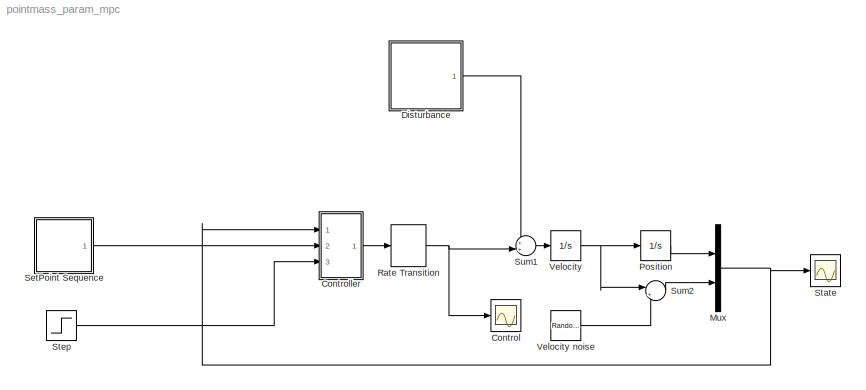
MODEL pointmass_param_mpc
KIND model
BLOCK [Scope] Control
  DataFormat = StructureWithTime
  Floating = off
  NumInputPorts = 1
  Ports = [1]
  SID = 8
  SampleTime = 0
  SaveName = ScopeData1
  ShowLegends = off
  TimeRange = 240
  YMax = 0.35
  YMin = -0.4
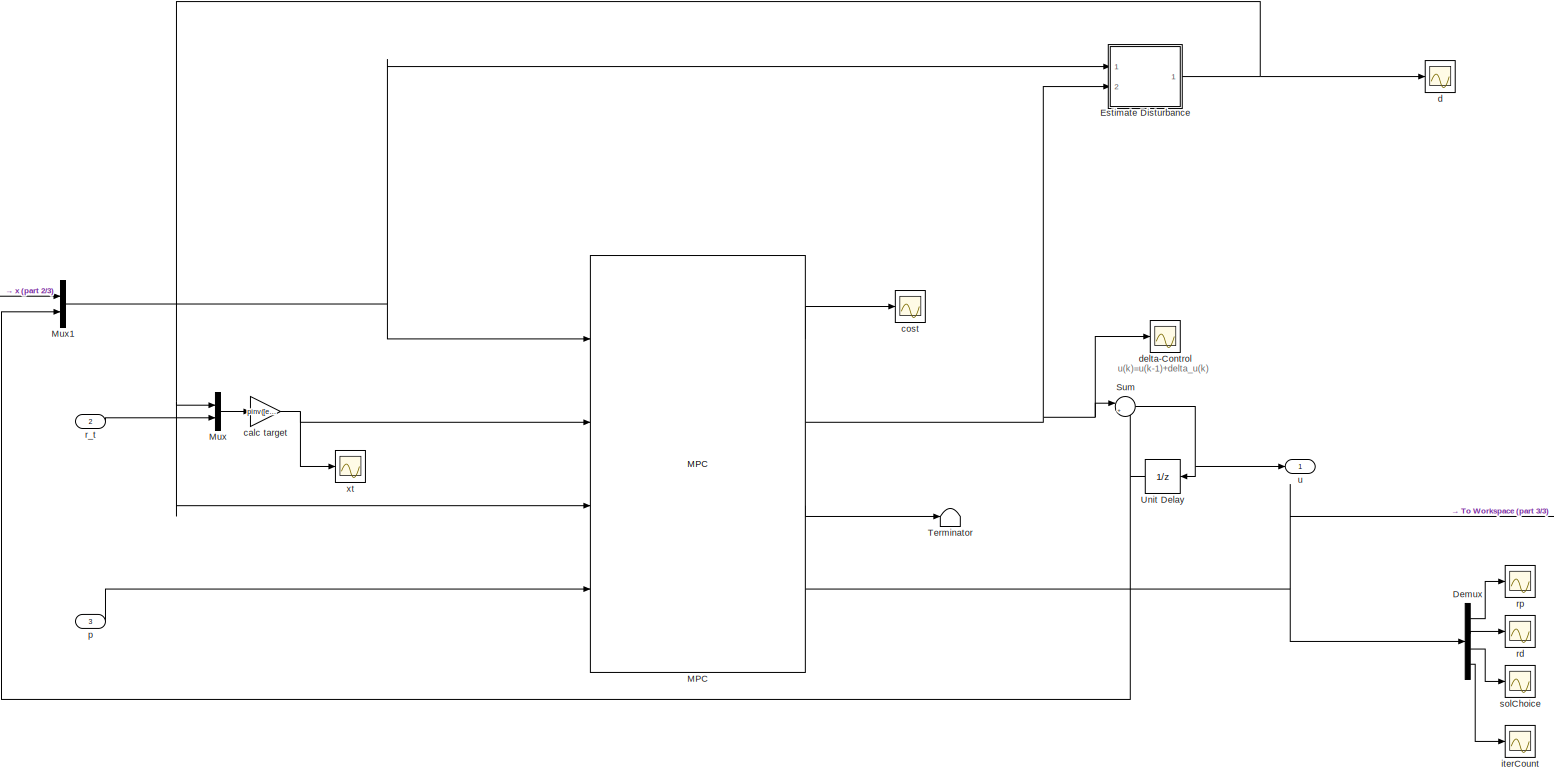
[diagram: Controller - part 1/3, most of the canvas]
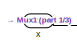
[diagram: Controller - part 2/3, middle left region]
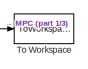
[diagram: Controller - part 3/3, bottom right region]
BLOCK [SubSystem] Controller
  Ports = [3, 1]
  RequestExecContextInheritance = off
  SID = 410
  SystemSampleTime = dt
  TreatAsAtomicUnit = on
BLOCK [Demux] Controller/Demux
  DisplayOption = bar
  Ports = [1, 4]
  SID = 416
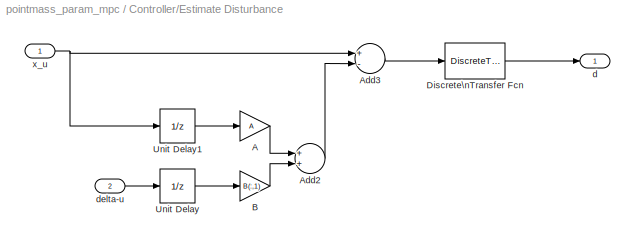
BLOCK [SubSystem] Controller/Estimate Disturbance
  Ports = [2, 1]
  RequestExecContextInheritance = off
  SID = 417
BLOCK [Gain] Controller/Estimate Disturbance/A
  Gain = A
  Multiplication = Matrix(K*u)
  OutDataTypeStr = Inherit: Inherit via internal rule
  ParamDataTypeStr = Inherit: Inherit via internal rule
  SID = 420
  SaturateOnIntegerOverflow = off
BLOCK [Sum] Controller/Estimate Disturbance/Add2
  InputSameDT = off
  OutDataTypeStr = Inherit: Inherit via internal rule
  Ports = [2, 1]
  SID = 421
  SaturateOnIntegerOverflow = off
BLOCK [Sum] Controller/Estimate Disturbance/Add3
  InputSameDT = off
  Inputs = +-
  OutDataTypeStr = Inherit: Inherit via internal rule
  Ports = [2, 1]
  SID = 422
  SaturateOnIntegerOverflow = off
BLOCK [Gain] Controller/Estimate Disturbance/B
  Gain = B(:,1)
  Multiplication = Matrix(K*u)
  OutDataTypeStr = Inherit: Inherit via internal rule
  ParamDataTypeStr = Inherit: Inherit via internal rule
  SID = 423
  SaturateOnIntegerOverflow = off
BLOCK [DiscreteTransferFcn] Controller/Estimate Disturbance/Discrete\nTransfer Fcn
  Denominator = [1 -0.5]
  InputPortMap = u0
  Numerator = [0.5]
  Ports = [1, 1]
  SID = 424
BLOCK [UnitDelay] Controller/Estimate Disturbance/Unit Delay
  InputProcessing = Elements as channels (sample based)
  SID = 425
  SampleTime = -1
BLOCK [UnitDelay] Controller/Estimate Disturbance/Unit Delay1
  InputProcessing = Elements as channels (sample based)
  SID = 426
  SampleTime = -1
BLOCK [Outport] Controller/Estimate Disturbance/d
  IconDisplay = Port number
  SID = 427
BLOCK [Inport] Controller/Estimate Disturbance/delta-u
  IconDisplay = Port number
  Port = 2
  SID = 419
BLOCK [Inport] Controller/Estimate Disturbance/x_u
  IconDisplay = Port number
  SID = 418
BLOCK [Reference] Controller/MPC  REF=softmpc/MPC  (lib defined in slx_924f6ada8cb6)
  A = A
  B = B
  Ed = Ed
  Ef = Ef
  Fp = Fp
  Fpf = Fpf
  Fps = Fps
  Fu = Fu
  Fus = Fus
  Fx = Fx
  Fxf = Fxf
  Fxs = Fxs
  Ports = [4, 4]
  Q = Q
  Qf = Qf
  R = R
  SID = 506
  SourceBlock = softmpc/MPC
  SourceType = MPC
  T = 6
  consAllBox = on
  dt = -1
  e = ef
  f = f
  ff = ff
  fs = fs
  kappa = 0.005
  numNewton = 5
  qfv = qf
  qv = q
  rv = r
BLOCK [Mux] Controller/Mux
  DisplayOption = bar
  Inputs = 2
  Ports = [2, 1]
  SID = 428
BLOCK [Mux] Controller/Mux1
  DisplayOption = bar
  Inputs = 2
  Ports = [2, 1]
  SID = 89
BLOCK [Sum] Controller/Sum
  IconShape = round
  InputSameDT = off
  Inputs = |++
  OutDataTypeStr = Inherit: Inherit via internal rule
  Ports = [2, 1]
  SID = 87
  SaturateOnIntegerOverflow = off
BLOCK [Terminator] Controller/Terminator
  SID = 507
BLOCK [ToWorkspace] Controller/To Workspace
  MaxDataPoints = inf
  Ports = [1]
  SID = 486
  SampleTime = -1
  VariableName = info_out1
BLOCK [UnitDelay] Controller/Unit Delay
  SID = 88
  SampleTime = -1
BLOCK [Gain] Controller/calc target
  Gain = pinv([eye(3)-A;1 0 0])
  Multiplication = Matrix(K*u)
  OutDataTypeStr = Inherit: Inherit via internal rule
  ParamDataTypeStr = Inherit: Inherit via internal rule
  SID = 487
  SaturateOnIntegerOverflow = off
BLOCK [Scope] Controller/cost
  DataFormat = StructureWithTime
  Floating = off
  NumInputPorts = 1
  Ports = [1]
  SID = 488
  SampleTime = 0
  SaveName = ScopeData10
  ShowLegends = off
  YMax = 2.5
  YMin = -0.25
  ZoomMode = yonly
BLOCK [Scope] Controller/d
  DataFormat = StructureWithTime
  Floating = off
  NumInputPorts = 1
  Ports = [1]
  SID = 489
  SampleTime = 0
  SaveName = ScopeData11
  ShowLegends = off
  YMax = 0.002
  YMin = -0.00025
  ZoomMode = yonly
BLOCK [Scope] Controller/delta-Control
  DataFormat = StructureWithTime
  Floating = off
  NumInputPorts = 1
  Ports = [1]
  SID = 307
  SampleTime = 0
  SaveName = ScopeData2
  ShowLegends = off
  TimeRange = 240
  YMax = 0.35
  YMin = -0.4
BLOCK [Scope] Controller/iterCount
  DataFormat = StructureWithTime
  Floating = off
  NumInputPorts = 1
  Ports = [1]
  SID = 490
  SampleTime = 0
  SaveName = ScopeData12
  ShowLegends = off
  TimeRange = 200
  YMax = 25
  YMin = 0
  ZoomMode = xonly
BLOCK [Inport] Controller/p
  IconDisplay = Port number
  Port = 3
  SID = 413
BLOCK [Inport] Controller/r_t
  IconDisplay = Port number
  Port = 2
  SID = 411
BLOCK [Scope] Controller/rd
  DataFormat = StructureWithTime
  Floating = off
  NumInputPorts = 1
  Ports = [1]
  SID = 491
  SampleTime = 0
  SaveName = ScopeData13
  ShowLegends = off
  YMax = 13
  YMin = 0
BLOCK [Scope] Controller/rp
  DataFormat = StructureWithTime
  Floating = off
  NumInputPorts = 1
  Ports = [1]
  SID = 492
  SampleTime = 0
  SaveName = ScopeData14
  ShowLegends = off
  YMax = 2.75e-08
  YMin = 1.65436e-24
BLOCK [Scope] Controller/solChoice
  DataFormat = StructureWithTime
  Floating = off
  NumInputPorts = 1
  Ports = [1]
  SID = 493
  SampleTime = 0
  SaveName = ScopeData15
  ShowLegends = off
  YMax = 1.05
  YMin = 0.95
  ZoomMode = xonly
BLOCK [Outport] Controller/u
  IconDisplay = Port number
  SID = 414
BLOCK [Inport] Controller/x
  IconDisplay = Port number
  SID = 497
BLOCK [Scope] Controller/xt
  DataFormat = StructureWithTime
  Floating = off
  NumInputPorts = 1
  Ports = [1]
  SID = 494
  SampleTime = 0
  SaveName = ScopeData16
  ShowLegends = off
  YMax = 2.5
  YMin = -0.25
  ZoomMode = yonly
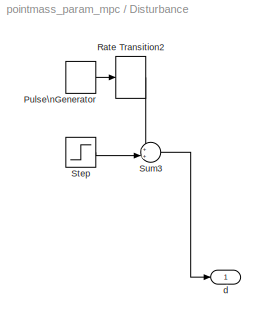
BLOCK [SubSystem] Disturbance
  Ports = [0, 1]
  RequestExecContextInheritance = off
  SID = 394
BLOCK [DiscretePulseGenerator] Disturbance/Pulse\nGenerator
  Amplitude = 0.1
  Period = 200
  PhaseDelay = 100
  Ports = [0, 1]
  PulseType = Time based
  SID = 390
BLOCK [RateTransition] Disturbance/Rate Transition2
  SID = 391
BLOCK [Step] Disturbance/Step
  After = 0.01
  SID = 355
  SampleTime = 0
  Time = 100
BLOCK [Sum] Disturbance/Sum3
  IconShape = round
  InputSameDT = off
  Inputs = ++|
  OutDataTypeStr = Inherit: Inherit via internal rule
  Ports = [2, 1]
  SID = 388
  SaturateOnIntegerOverflow = off
BLOCK [Outport] Disturbance/d
  IconDisplay = Port number
  SID = 395
BLOCK [Mux] Mux
  DisplayOption = bar
  Inputs = 2
  Ports = [2, 1]
  SID = 3
BLOCK [Integrator] Position
  Ports = [1, 1]
  SID = 2
BLOCK [RateTransition] Rate Transition
  SID = 360
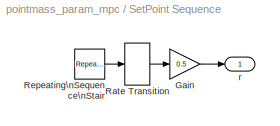
BLOCK [SubSystem] SetPoint Sequence
  Ports = [0, 1]
  RequestExecContextInheritance = off
  SID = 40
BLOCK [Gain] SetPoint Sequence/Gain
  Gain = 0.5
  OutDataTypeStr = Inherit: Inherit via internal rule
  ParamDataTypeStr = Inherit: Inherit via internal rule
  SID = 11
  SaturateOnIntegerOverflow = off
BLOCK [RateTransition] SetPoint Sequence/Rate Transition
  SID = 36
BLOCK [Reference] SetPoint Sequence/Repeating\nSequence\nStair  REF=simulink/Sources/Repeating\nSequence\nStair
  ConRadixGroup = Best Precision: Vector-wise
  LockScale = off
  OutDataType = double
  OutDataTypeStr = double
  OutMax = []
  OutMin = []
  OutScaling = 2^-12
  OutValues = [1 0 2 0 3 0 4 0 5 0 6 0].'
  OutputDataTypeScalingMode = Specify via dialog
  Ports = [0, 1]
  SID = 9
  SourceBlock = simulink/Sources/Repeating\nSequence\nStair
  SourceType = Repeating Sequence Stair
  tsamp = 20
BLOCK [Outport] SetPoint Sequence/r
  IconDisplay = Port number
  SID = 41
BLOCK [Scope] State
  DataFormat = StructureWithTime
  Floating = off
  NumInputPorts = 1
  Ports = [1]
  SID = 7
  SampleTime = 0
  ShowLegends = off
  TimeRange = 200
  YMax = 14
  YMin = -1
  ZoomMode = yonly
BLOCK [Step] Step
  After = 0
  Before = 0.15
  SID = 399
  SampleTime = 0
  Time = 100
BLOCK [Sum] Sum1
  IconShape = round
  InputSameDT = off
  Inputs = ++|
  OutDataTypeStr = Inherit: Inherit via internal rule
  Ports = [2, 1]
  SID = 325
  SaturateOnIntegerOverflow = off
BLOCK [Sum] Sum2
  IconShape = round
  InputSameDT = off
  Inputs = |++
  OutDataTypeStr = Inherit: Inherit via internal rule
  Ports = [2, 1]
  SID = 357
  SaturateOnIntegerOverflow = off
BLOCK [Integrator] Velocity
  Ports = [1, 1]
  SID = 1
BLOCK [RandomNumber] Velocity noise
  SID = 358
  SampleTime = dt
  Variance = 0.000000001
ANNOTATION Controller: u(k)=u(k-1)+delta_u(k)
LINE Controller/Demux:1 -> Controller/rp:1
LINE Controller/Demux:2 -> Controller/rd:1
LINE Controller/Demux:3 -> Controller/solChoice:1
LINE Controller/Demux:4 -> Controller/iterCount:1
LINE Controller/Estimate Disturbance/A:1 -> Controller/Estimate Disturbance/Add2:1
LINE Controller/Estimate Disturbance/Add2:1 -> Controller/Estimate Disturbance/Add3:2
LINE Controller/Estimate Disturbance/Add3:1 -> Controller/Estimate Disturbance/Discrete\nTransfer Fcn:1
LINE Controller/Estimate Disturbance/B:1 -> Controller/Estimate Disturbance/Add2:2
LINE Controller/Estimate Disturbance/Discrete\nTransfer Fcn:1 -> Controller/Estimate Disturbance/d:1
LINE Controller/Estimate Disturbance/Unit Delay1:1 -> Controller/Estimate Disturbance/A:1
LINE Controller/Estimate Disturbance/Unit Delay:1 -> Controller/Estimate Disturbance/B:1
LINE Controller/Estimate Disturbance/delta-u:1 -> Controller/Estimate Disturbance/Unit Delay:1
NET Controller/Estimate Disturbance/x_u:1 -> Controller/Estimate Disturbance/Add3:1, Controller/Estimate Disturbance/Unit Delay1:1
NET Controller/Estimate Disturbance:1 -> Controller/MPC:3, Controller/Mux:1, Controller/d:1
LINE Controller/MPC:1 -> Controller/cost:1
NET Controller/MPC:2 -> Controller/Estimate Disturbance:2, Controller/Sum:1, Controller/delta-Control:1
LINE Controller/MPC:3 -> Controller/Terminator:1
NET Controller/MPC:4 -> Controller/Demux:1, Controller/To Workspace:1
NET Controller/Mux1:1 -> Controller/Estimate Disturbance:1, Controller/MPC:1
LINE Controller/Mux:1 -> Controller/calc target:1
NET Controller/Sum:1 -> Controller/Unit Delay:1, Controller/u:1
NET Controller/Unit Delay:1 -> Controller/Mux1:2, Controller/Sum:2
NET Controller/calc target:1 -> Controller/MPC:2, Controller/xt:1
LINE Controller/p:1 -> Controller/MPC:4
LINE Controller/r_t:1 -> Controller/Mux:2
LINE Controller/x:1 -> Controller/Mux1:1
LINE Controller:1 -> Rate Transition:1
LINE Disturbance/Pulse\nGenerator:1 -> Disturbance/Rate Transition2:1
LINE Disturbance/Rate Transition2:1 -> Disturbance/Sum3:1
LINE Disturbance/Step:1 -> Disturbance/Sum3:2
LINE Disturbance/Sum3:1 -> Disturbance/d:1
LINE Disturbance:1 -> Sum1:1
NET Mux:1 -> Controller:1, State:1
LINE Position:1 -> Mux:1
NET Rate Transition:1 -> Control:1, Sum1:2
LINE SetPoint Sequence/Gain:1 -> SetPoint Sequence/r:1
LINE SetPoint Sequence/Rate Transition:1 -> SetPoint Sequence/Gain:1
LINE SetPoint Sequence/Repeating\nSequence\nStair:1 -> SetPoint Sequence/Rate Transition:1
LINE SetPoint Sequence:1 -> Controller:2
LINE Step:1 -> Controller:3
LINE Sum1:1 -> Velocity:1
LINE Sum2:1 -> Mux:2
LINE Velocity noise:1 -> Sum2:2
NET Velocity:1 -> Position:1, Sum2:1
note: NET lines group one-source signal fan-out (src -> all destinations, sorted); 1:1 wires keep LINE
